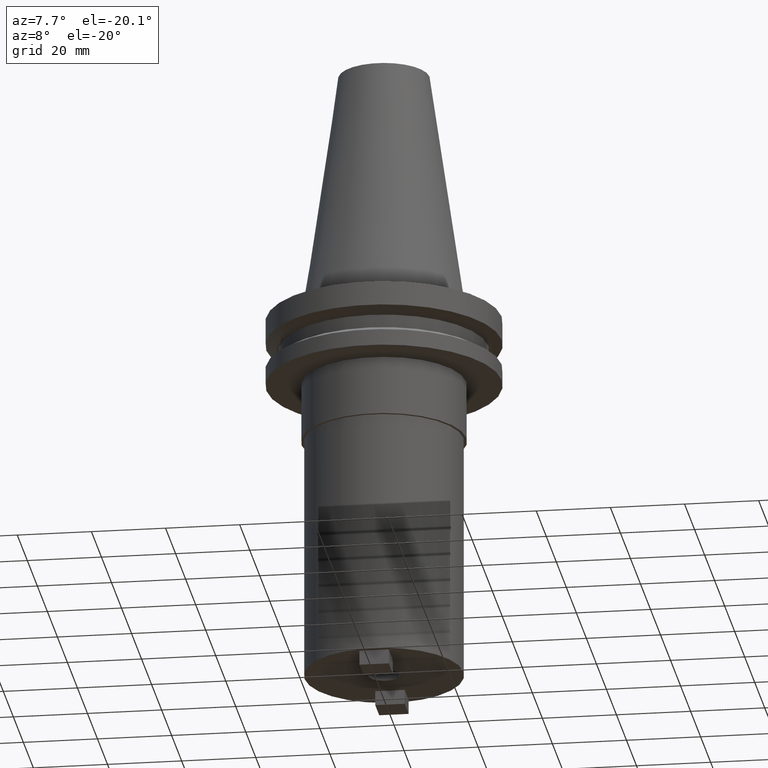
[diagram: clean part render]
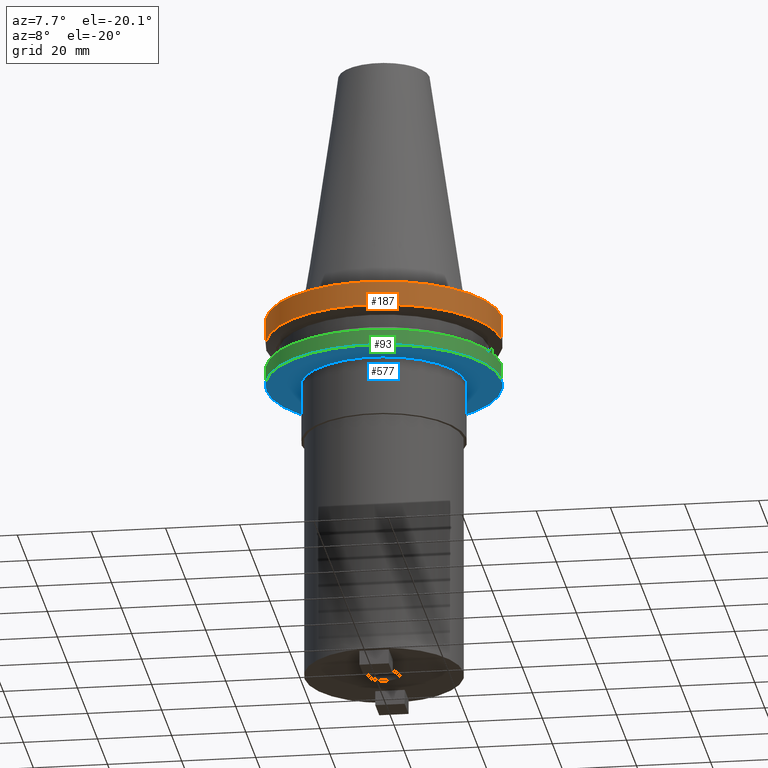
[diagram: same view with three faces highlighted in distinct colors, each labeled with its STEP entity id]
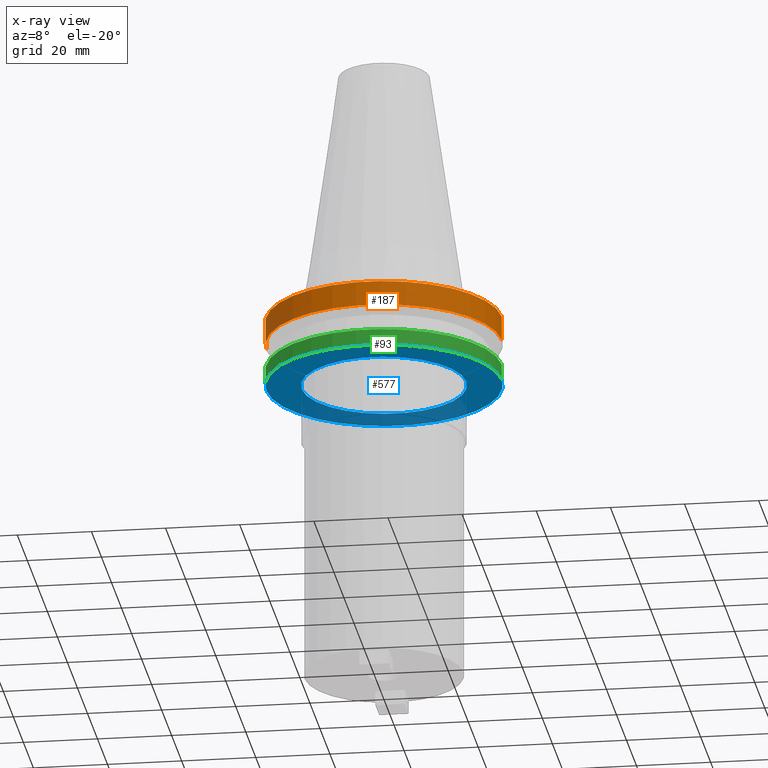
[diagram: x-ray of the same camera — body ghosted, the three highlighted faces saturated]
A machine part, auxiliary view with three faces highlighted in distinct colors.
The next image is the same camera in x-ray (body ghosted, the three faces saturated) — at least one of them is partly hidden behind the body in this view.
Their STEP definitions:

[orange] entity #187 — the highlighted cylindrical surface (partial cylindrical patch) has radius 31.75 mm, axis along (-0, -0, 1).
#50 = DIRECTION ( 'NONE',  ( 1.000000000000000000, 0.000000000000000000, 0.000000000000000000 ) ) ;
#70 = DIRECTION ( 'NONE',  ( -0.000000000000000000, -0.000000000000000000, 1.000000000000000000 ) ) ;
#178 = VERTEX_POINT ( 'NONE', #234 ) ;
#187 = ADVANCED_FACE ( 'NONE', ( #566 ), #324, .T. ) ;
#217 = CARTESIAN_POINT ( 'NONE',  ( 31.75000000000000000, 0.000000000000000000, -1.000000000000000888 ) ) ;
#219 = CARTESIAN_POINT ( 'NONE',  ( -31.75000000000000000, 3.888253587292846476E-15, -7.605276606597335842 ) ) ;
#226 = AXIS2_PLACEMENT_3D ( 'NONE', #913, #720, #1002 ) ;
#229 = VECTOR ( 'NONE', #883, 1000.000000000000000 ) ;
#232 = EDGE_CURVE ( 'NONE', #178, #991, #507, .T. ) ;
#234 = CARTESIAN_POINT ( 'NONE',  ( 31.75000000000000000, 0.000000000000000000, -7.605276606597335842 ) ) ;
#277 = EDGE_CURVE ( 'NONE', #956, #991, #558, .T. ) ;
#306 = CARTESIAN_POINT ( 'NONE',  ( -31.75000000000000000, 3.888253587292846476E-15, 68.25000000000000000 ) ) ;
#324 = CYLINDRICAL_SURFACE ( 'NONE', #226, 31.75000000000000000 ) ;
#334 = DIRECTION ( 'NONE',  ( -0.000000000000000000, -0.000000000000000000, 1.000000000000000000 ) ) ;
#478 = EDGE_CURVE ( 'NONE', #496, #956, #874, .T. ) ;
#496 = VERTEX_POINT ( 'NONE', #219 ) ;
#507 = LINE ( 'NONE', #1089, #906 ) ;
#508 = ORIENTED_EDGE ( 'NONE', *, *, #277, .F. ) ;
#512 = EDGE_LOOP ( 'NONE', ( #954, #681, #674, #508 ) ) ;
#547 = CARTESIAN_POINT ( 'NONE',  ( -31.75000000000000000, 3.888253587292846476E-15, -1.000000000000000888 ) ) ;
#558 = CIRCLE ( 'NONE', #1007, 31.75000000000000000 ) ;
#566 = FACE_OUTER_BOUND ( 'NONE', #512, .T. ) ;
#568 = EDGE_CURVE ( 'NONE', #496, #178, #642, .T. ) ;
#642 = CIRCLE ( 'NONE', #908, 31.75000000000000000 ) ;
#664 = DIRECTION ( 'NONE',  ( 1.000000000000000000, 0.000000000000000000, 0.000000000000000000 ) ) ;
#674 = ORIENTED_EDGE ( 'NONE', *, *, #232, .T. ) ;
#681 = ORIENTED_EDGE ( 'NONE', *, *, #568, .T. ) ;
#720 = DIRECTION ( 'NONE',  ( -0.000000000000000000, -0.000000000000000000, 1.000000000000000000 ) ) ;
#792 = DIRECTION ( 'NONE',  ( -0.000000000000000000, -0.000000000000000000, 1.000000000000000000 ) ) ;
#836 = CARTESIAN_POINT ( 'NONE',  ( 0.000000000000000000, 0.000000000000000000, -1.000000000000000888 ) ) ;
#874 = LINE ( 'NONE', #306, #229 ) ;
#883 = DIRECTION ( 'NONE',  ( -0.000000000000000000, -0.000000000000000000, 1.000000000000000000 ) ) ;
#906 = VECTOR ( 'NONE', #70, 1000.000000000000000 ) ;
#908 = AXIS2_PLACEMENT_3D ( 'NONE', #961, #792, #50 ) ;
#913 = CARTESIAN_POINT ( 'NONE',  ( 0.000000000000000000, 0.000000000000000000, 68.25000000000000000 ) ) ;
#954 = ORIENTED_EDGE ( 'NONE', *, *, #478, .F. ) ;
#956 = VERTEX_POINT ( 'NONE', #547 ) ;
#961 = CARTESIAN_POINT ( 'NONE',  ( 0.000000000000000000, 0.000000000000000000, -7.605276606597335842 ) ) ;
#991 = VERTEX_POINT ( 'NONE', #217 ) ;
#1002 = DIRECTION ( 'NONE',  ( 1.000000000000000000, 0.000000000000000000, 0.000000000000000000 ) ) ;
#1007 = AXIS2_PLACEMENT_3D ( 'NONE', #836, #334, #664 ) ;
#1089 = CARTESIAN_POINT ( 'NONE',  ( 31.75000000000000000, 0.000000000000000000, 68.25000000000000000 ) ) ;

[blue] entity #577 — the highlighted planar face has unit normal (0, -0, 1).
#34 = EDGE_CURVE ( 'NONE', #752, #483, #529, .T. ) ;
#38 = CIRCLE ( 'NONE', #951, 31.74999999999999289 ) ;
#43 = CARTESIAN_POINT ( 'NONE',  ( 0.000000000000000000, 0.000000000000000000, -19.04999999999999716 ) ) ;
#58 = PLANE ( 'NONE',  #180 ) ;
#64 = DIRECTION ( 'NONE',  ( 1.000000000000000000, 0.000000000000000000, 0.000000000000000000 ) ) ;
#68 = DIRECTION ( 'NONE',  ( -0.000000000000000000, -0.000000000000000000, 1.000000000000000000 ) ) ;
#77 = VERTEX_POINT ( 'NONE', #466 ) ;
#94 = ORIENTED_EDGE ( 'NONE', *, *, #282, .T. ) ;
#95 = AXIS2_PLACEMENT_3D ( 'NONE', #669, #563, #64 ) ;
#145 = ORIENTED_EDGE ( 'NONE', *, *, #34, .T. ) ;
#180 = AXIS2_PLACEMENT_3D ( 'NONE', #1038, #200, #534 ) ;
#200 = DIRECTION ( 'NONE',  ( 0.000000000000000000, -0.000000000000000000, 1.000000000000000000 ) ) ;
#208 = CARTESIAN_POINT ( 'NONE',  ( -31.74999999999999289, 3.888253587292845687E-15, -19.04999999999999716 ) ) ;
#282 = EDGE_CURVE ( 'NONE', #483, #752, #869, .T. ) ;
#299 = CARTESIAN_POINT ( 'NONE',  ( 0.000000000000000000, 0.000000000000000000, -19.04999999999999716 ) ) ;
#318 = CIRCLE ( 'NONE', #690, 31.74999999999999289 ) ;
#329 = DIRECTION ( 'NONE',  ( 1.000000000000000000, 0.000000000000000000, 0.000000000000000000 ) ) ;
#336 = AXIS2_PLACEMENT_3D ( 'NONE', #43, #376, #476 ) ;
#376 = DIRECTION ( 'NONE',  ( -0.000000000000000000, -0.000000000000000000, 1.000000000000000000 ) ) ;
#415 = EDGE_LOOP ( 'NONE', ( #145, #94 ) ) ;
#431 = EDGE_CURVE ( 'NONE', #503, #77, #38, .T. ) ;
#466 = CARTESIAN_POINT ( 'NONE',  ( 31.74999999999999289, 0.000000000000000000, -19.04999999999999716 ) ) ;
#474 = FACE_OUTER_BOUND ( 'NONE', #574, .T. ) ;
#476 = DIRECTION ( 'NONE',  ( 1.000000000000000000, 0.000000000000000000, 0.000000000000000000 ) ) ;
#483 = VERTEX_POINT ( 'NONE', #1043 ) ;
#484 = CARTESIAN_POINT ( 'NONE',  ( 0.000000000000000000, 0.000000000000000000, -19.04999999999999716 ) ) ;
#503 = VERTEX_POINT ( 'NONE', #208 ) ;
#529 = CIRCLE ( 'NONE', #336, 22.22500000000000142 ) ;
#534 = DIRECTION ( 'NONE',  ( 1.000000000000000000, 0.000000000000000000, 0.000000000000000000 ) ) ;
#563 = DIRECTION ( 'NONE',  ( -0.000000000000000000, -0.000000000000000000, 1.000000000000000000 ) ) ;
#574 = EDGE_LOOP ( 'NONE', ( #1085, #599 ) ) ;
#577 = ADVANCED_FACE ( 'NONE', ( #474, #798 ), #58, .F. ) ;
#599 = ORIENTED_EDGE ( 'NONE', *, *, #431, .F. ) ;
#629 = DIRECTION ( 'NONE',  ( 1.000000000000000000, 0.000000000000000000, 0.000000000000000000 ) ) ;
#669 = CARTESIAN_POINT ( 'NONE',  ( 0.000000000000000000, 0.000000000000000000, -19.04999999999999716 ) ) ;
#671 = EDGE_CURVE ( 'NONE', #77, #503, #318, .T. ) ;
#690 = AXIS2_PLACEMENT_3D ( 'NONE', #484, #68, #329 ) ;
#710 = CARTESIAN_POINT ( 'NONE',  ( 22.22500000000000142, 0.000000000000000000, -19.04999999999999716 ) ) ;
#752 = VERTEX_POINT ( 'NONE', #710 ) ;
#784 = DIRECTION ( 'NONE',  ( -0.000000000000000000, -0.000000000000000000, 1.000000000000000000 ) ) ;
#798 = FACE_BOUND ( 'NONE', #415, .T. ) ;
#869 = CIRCLE ( 'NONE', #95, 22.22500000000000142 ) ;
#951 = AXIS2_PLACEMENT_3D ( 'NONE', #299, #784, #629 ) ;
#1038 = CARTESIAN_POINT ( 'NONE',  ( 0.000000000000000000, 31.74999999999999289, -19.04999999999999716 ) ) ;
#1043 = CARTESIAN_POINT ( 'NONE',  ( -22.22500000000000142, 2.721777511104992849E-15, -19.04999999999999716 ) ) ;
#1085 = ORIENTED_EDGE ( 'NONE', *, *, #671, .F. ) ;

[green] entity #93 — the highlighted cylindrical surface (partial cylindrical patch) has radius 31.75 mm, axis along (-0, -0, 1).
#3 = VERTEX_POINT ( 'NONE', #944 ) ;
#13 = ORIENTED_EDGE ( 'NONE', *, *, #779, .T. ) ;
#38 = CIRCLE ( 'NONE', #951, 31.74999999999999289 ) ;
#77 = VERTEX_POINT ( 'NONE', #466 ) ;
#93 = ADVANCED_FACE ( 'NONE', ( #702 ), #387, .T. ) ;
#173 = CARTESIAN_POINT ( 'NONE',  ( 31.75000000000000000, 0.000000000000000000, -14.65472339340266572 ) ) ;
#208 = CARTESIAN_POINT ( 'NONE',  ( -31.74999999999999289, 3.888253587292845687E-15, -19.04999999999999716 ) ) ;
#227 = DIRECTION ( 'NONE',  ( -0.000000000000000000, -0.000000000000000000, 1.000000000000000000 ) ) ;
#237 = EDGE_CURVE ( 'NONE', #503, #3, #246, .T. ) ;
#246 = LINE ( 'NONE', #494, #491 ) ;
#251 = CIRCLE ( 'NONE', #744, 31.75000000000000000 ) ;
#269 = ORIENTED_EDGE ( 'NONE', *, *, #237, .F. ) ;
#299 = CARTESIAN_POINT ( 'NONE',  ( 0.000000000000000000, 0.000000000000000000, -19.04999999999999716 ) ) ;
#338 = VECTOR ( 'NONE', #727, 1000.000000000000000 ) ;
#387 = CYLINDRICAL_SURFACE ( 'NONE', #704, 31.75000000000000000 ) ;
#409 = DIRECTION ( 'NONE',  ( 1.000000000000000000, 0.000000000000000000, 0.000000000000000000 ) ) ;
#431 = EDGE_CURVE ( 'NONE', #503, #77, #38, .T. ) ;
#459 = DIRECTION ( 'NONE',  ( -0.000000000000000000, -0.000000000000000000, 1.000000000000000000 ) ) ;
#466 = CARTESIAN_POINT ( 'NONE',  ( 31.74999999999999289, 0.000000000000000000, -19.04999999999999716 ) ) ;
#491 = VECTOR ( 'NONE', #227, 1000.000000000000000 ) ;
#494 = CARTESIAN_POINT ( 'NONE',  ( -31.75000000000000000, 3.888253587292846476E-15, 68.25000000000000000 ) ) ;
#503 = VERTEX_POINT ( 'NONE', #208 ) ;
#590 = EDGE_LOOP ( 'NONE', ( #269, #1084, #13, #1029 ) ) ;
#624 = CARTESIAN_POINT ( 'NONE',  ( 0.000000000000000000, 0.000000000000000000, 68.25000000000000000 ) ) ;
#629 = DIRECTION ( 'NONE',  ( 1.000000000000000000, 0.000000000000000000, 0.000000000000000000 ) ) ;
#702 = FACE_OUTER_BOUND ( 'NONE', #590, .T. ) ;
#704 = AXIS2_PLACEMENT_3D ( 'NONE', #624, #459, #1048 ) ;
#716 = CARTESIAN_POINT ( 'NONE',  ( 0.000000000000000000, 0.000000000000000000, -14.65472339340266572 ) ) ;
#727 = DIRECTION ( 'NONE',  ( -0.000000000000000000, -0.000000000000000000, 1.000000000000000000 ) ) ;
#744 = AXIS2_PLACEMENT_3D ( 'NONE', #716, #809, #409 ) ;
#779 = EDGE_CURVE ( 'NONE', #77, #852, #978, .T. ) ;
#784 = DIRECTION ( 'NONE',  ( -0.000000000000000000, -0.000000000000000000, 1.000000000000000000 ) ) ;
#809 = DIRECTION ( 'NONE',  ( -0.000000000000000000, -0.000000000000000000, 1.000000000000000000 ) ) ;
#832 = EDGE_CURVE ( 'NONE', #3, #852, #251, .T. ) ;
#852 = VERTEX_POINT ( 'NONE', #173 ) ;
#944 = CARTESIAN_POINT ( 'NONE',  ( -31.75000000000000000, 3.888253587292846476E-15, -14.65472339340266572 ) ) ;
#951 = AXIS2_PLACEMENT_3D ( 'NONE', #299, #784, #629 ) ;
#978 = LINE ( 'NONE', #987, #338 ) ;
#987 = CARTESIAN_POINT ( 'NONE',  ( 31.75000000000000000, 0.000000000000000000, 68.25000000000000000 ) ) ;
#1029 = ORIENTED_EDGE ( 'NONE', *, *, #832, .F. ) ;
#1048 = DIRECTION ( 'NONE',  ( 1.000000000000000000, 0.000000000000000000, 0.000000000000000000 ) ) ;
#1084 = ORIENTED_EDGE ( 'NONE', *, *, #431, .T. ) ;